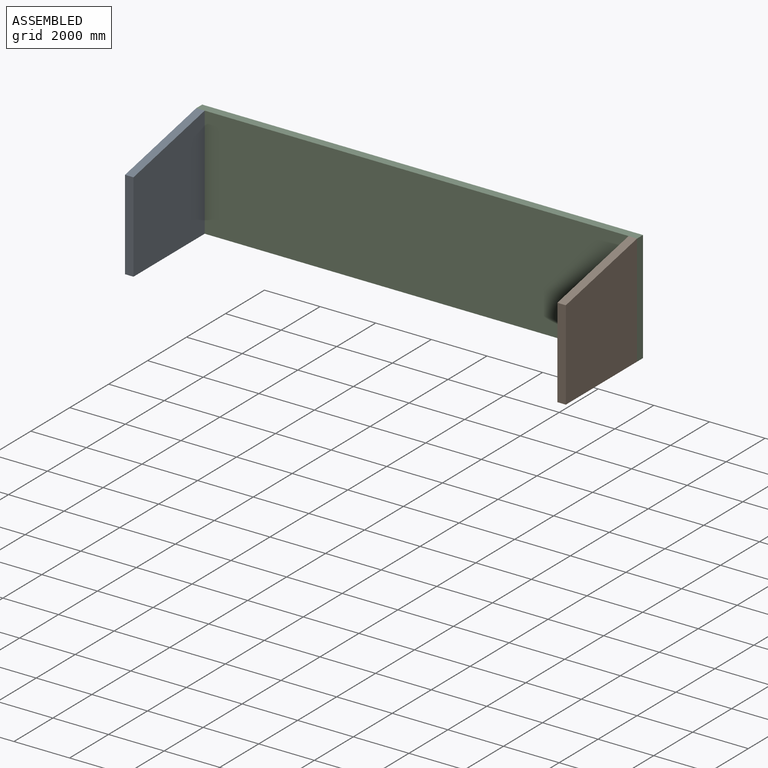
[diagram: assembled view]
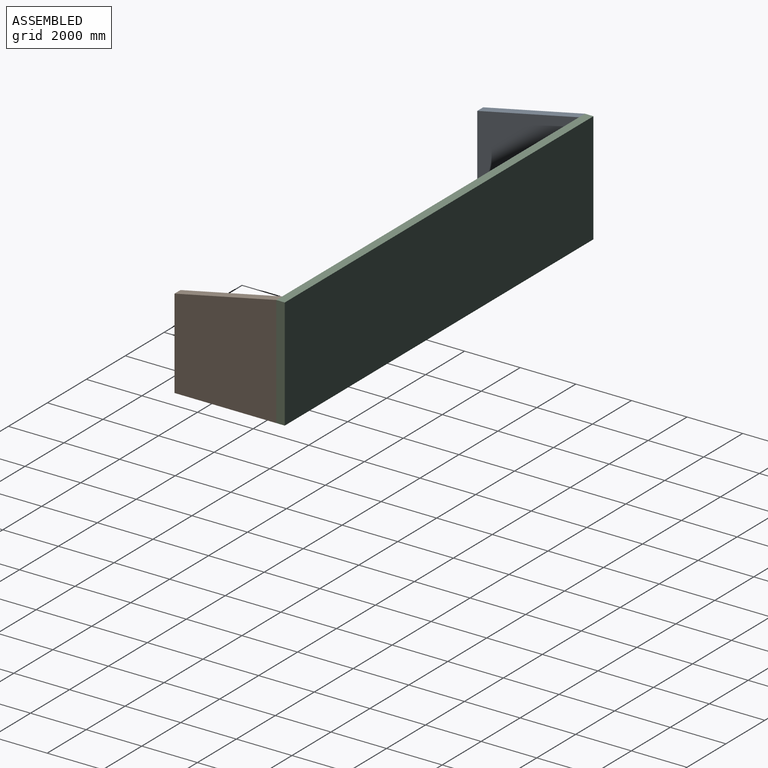
[diagram: assembled view, second angle]
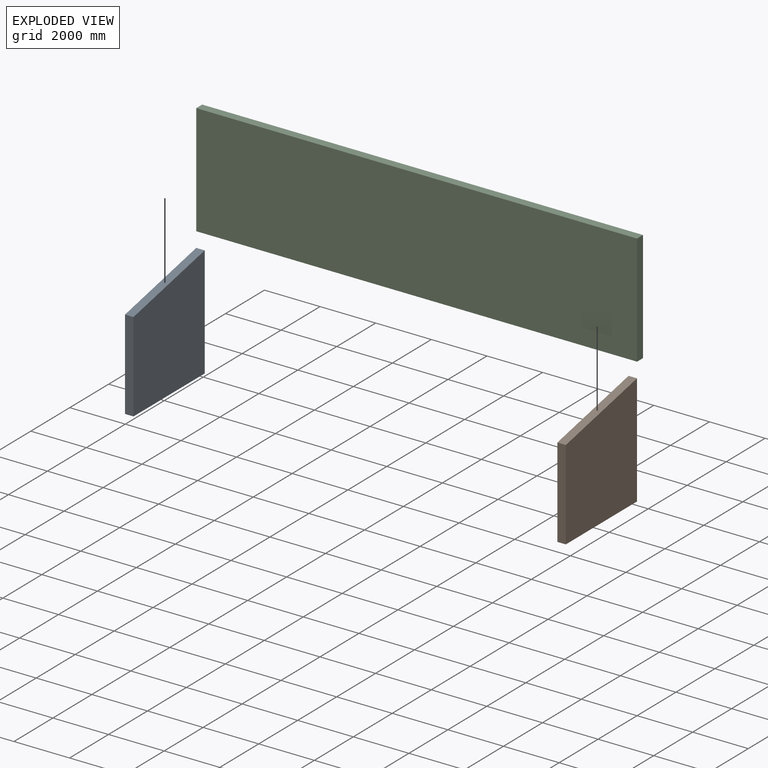
[diagram: exploded view]
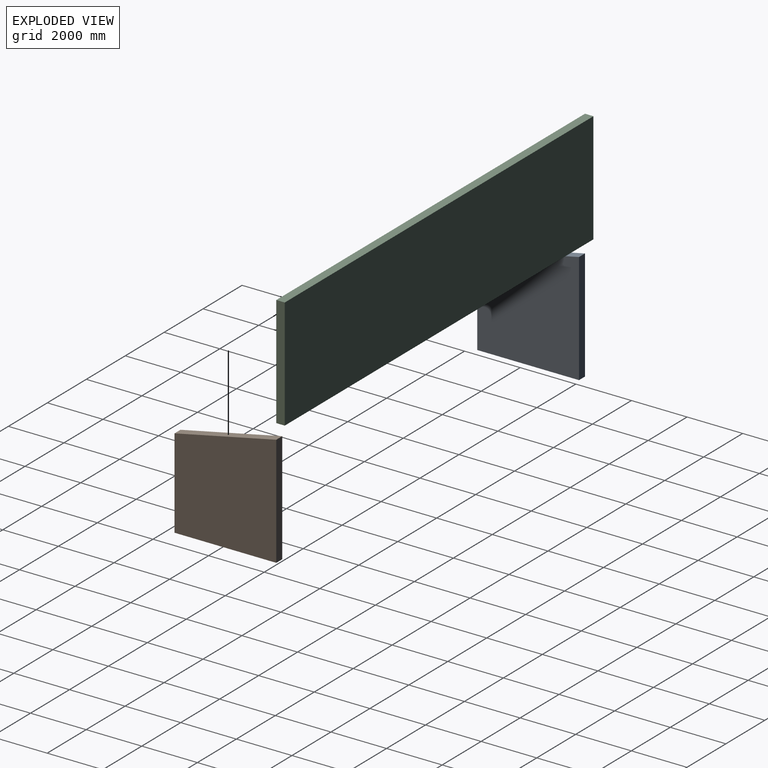
[diagram: exploded view, second angle]
ASSEMBLY  parts=3 mates=2
PART A: 6 faces, bbox 3657.6x304.8x4000 mm
  f0: plane 3230x304.8mm, normal (-1,0,0), area 984504mm2, adj f1,f3,f4,f5
  f1: plane 3657.6x304.8mm, normal (0,0,-1), area 1114836.5mm2, adj f0,f2,f4,f5
  f2: plane 4000x304.8mm, normal (1,0,0), area 1219200mm2, adj f1,f3,f4,f5
  f3: plane 3657.6x770mm, normal (-0.21,0,0.98), area 1139272.8mm2, adj f0,f2,f4,f5
  f4: plane 4000x3657.6mm, normal (0,-1,0), area 13222224mm2, adj f0,f1,f2,f3
  f5: plane 4000x3657.6mm, normal (0,1,0), area 13222224mm2, adj f0,f1,f2,f3
PART B: same geometry as A
PART C: 6 faces, bbox 15849.6x304.8x4000 mm
  f0: plane 4000x304.8mm, normal (-1,0,0), area 1219200mm2, adj f1,f3,f4,f5
  f1: plane 15849.6x304.8mm, normal (0,0,-1), area 4830958.1mm2, adj f0,f2,f4,f5
  f2: plane 4000x304.8mm, normal (1,0,0), area 1219200mm2, adj f1,f3,f4,f5
  f3: plane 15849.6x304.8mm, normal (0,0,1), area 4830958.1mm2, adj f0,f2,f4,f5
  f4: plane 15849.6x4000mm, normal (0,-1,0), area 63398400mm2, adj f0,f1,f2,f3
  f5: plane 15849.6x4000mm, normal (0,1,0), area 63398400mm2, adj f0,f1,f2,f3
PLACE A rot(axis=(0,0,1),90deg) t=(-3342.93,-2665.87,-3621.42)mm
PLACE B rot(axis=(0,0,1),90deg) t=(12201.87,-2665.87,-3621.42)mm
PLACE C t=(-3342.93,1296.53,-3621.42)mm fixed
MATE fastened B.f1 <-> C.f1  axis (0,0,1) through (12506.67,991.73,-3621.42)mm
MATE fastened C.f1 <-> A.f1  axis (0,0,1) through (-3342.93,991.73,-3621.42)mm
